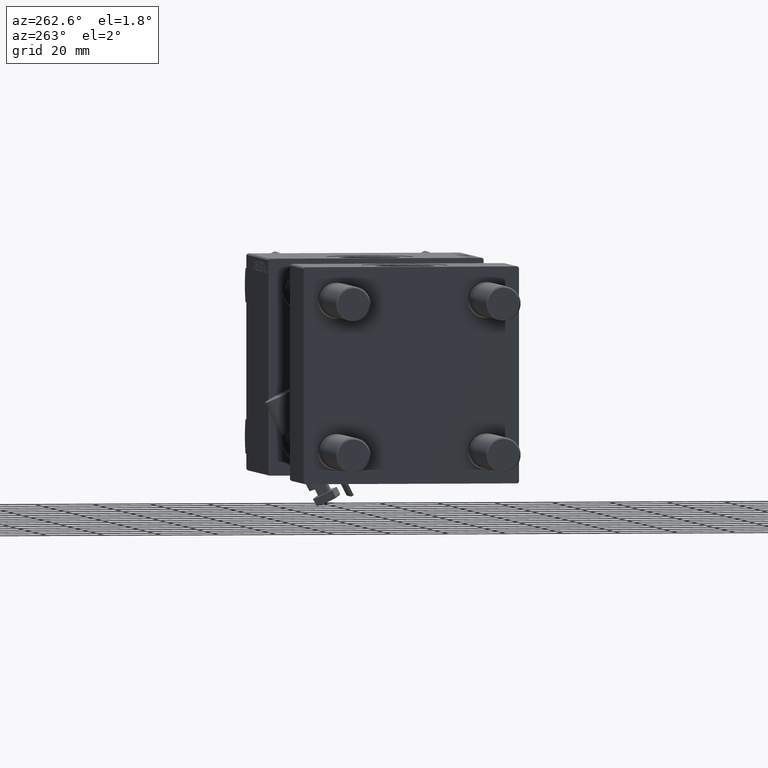
[diagram: clean part render]
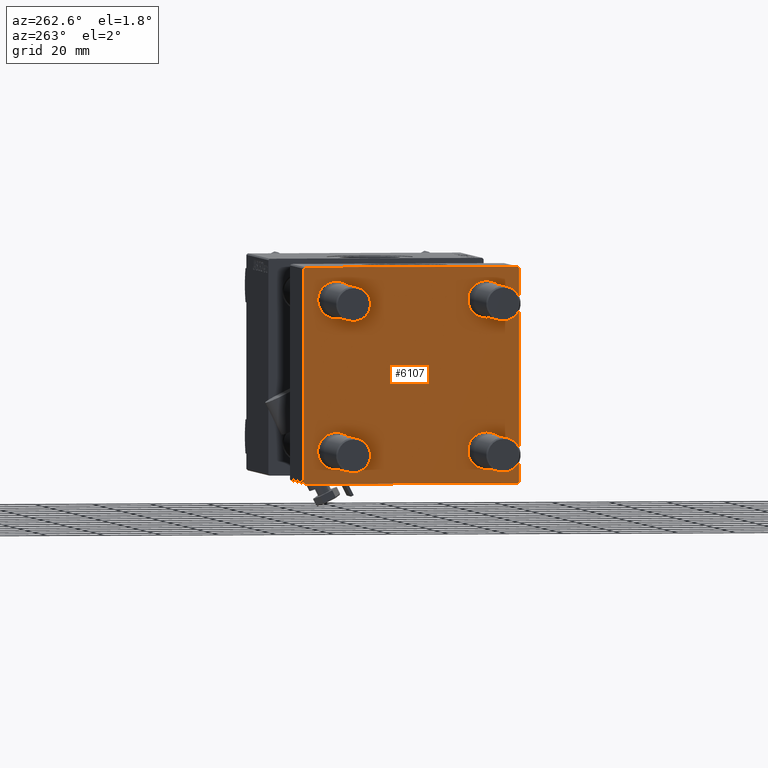
[diagram: same view with one face highlighted and labeled with its STEP entity id]
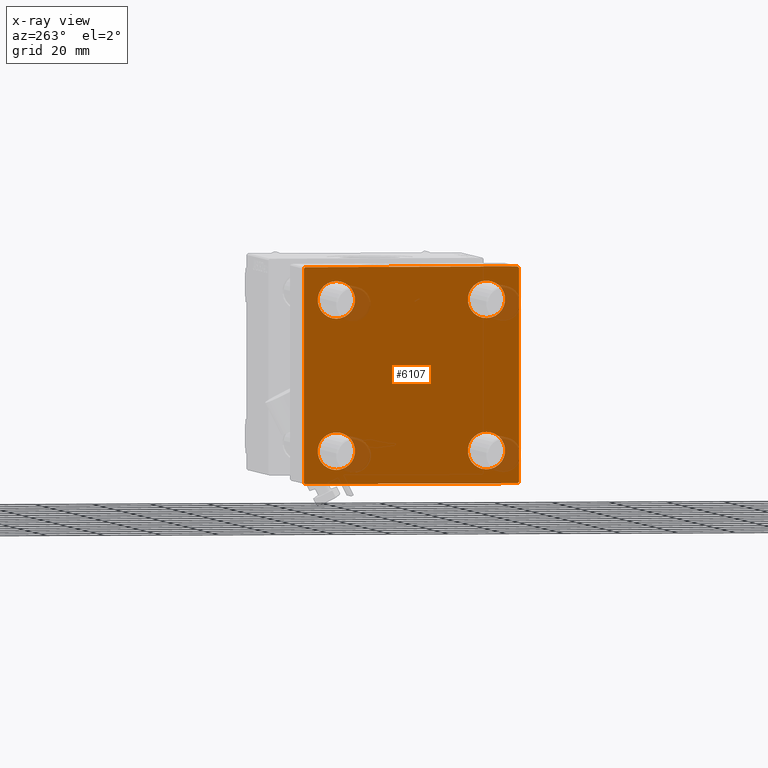
[diagram: x-ray of the same camera — body ghosted, the highlighted face saturated]
A machine part, auxiliary view. The second image highlights one B-rep face of the part: STEP entity #6107.
The next image is the same camera in x-ray: the body ghosted, the highlighted face saturated — about 5% of this face is hidden behind the body in this view.
In plain terms, the highlighted planar face has unit normal (-1, 0, 0).
Its self-contained STEP definition (entity closure, byte-faithful):
#74 = CARTESIAN_POINT ( 'NONE',  ( 0.000000000000000000, 0.000000000000000000, 0.000000000000000000 ) ) ;
#623 = DIRECTION ( 'NONE',  ( 1.000000000000000000, -0.000000000000000000, 0.000000000000000000 ) ) ;
#640 = DIRECTION ( 'NONE',  ( 1.000000000000000000, -0.000000000000000000, 0.000000000000000000 ) ) ;
#791 = LINE ( 'NONE', #35689, #18186 ) ;
#1707 = DIRECTION ( 'NONE',  ( 1.000000000000000000, -0.000000000000000000, 0.000000000000000000 ) ) ;
#2114 = VERTEX_POINT ( 'NONE', #7794 ) ;
#2826 = VECTOR ( 'NONE', #31549, 1000.000000000000000 ) ;
#3503 = VERTEX_POINT ( 'NONE', #5550 ) ;
#4164 = FACE_OUTER_BOUND ( 'NONE', #24896, .T. ) ;
#4224 = CARTESIAN_POINT ( 'NONE',  ( 0.000000000000000000, -26.14999999999999147, 26.15000000000000924 ) ) ;
#4410 = DIRECTION ( 'NONE',  ( -1.000000000000000000, 0.000000000000000000, -0.000000000000000000 ) ) ;
#4543 = CARTESIAN_POINT ( 'NONE',  ( 0.000000000000000000, -37.24999999999975842, -37.25000000000027001 ) ) ;
#4596 = LINE ( 'NONE', #40272, #50738 ) ;
#4801 = VERTEX_POINT ( 'NONE', #25053 ) ;
#4835 = CARTESIAN_POINT ( 'NONE',  ( 0.000000000000000000, -37.50000000000000711, 37.49999999999999289 ) ) ;
#5427 = CARTESIAN_POINT ( 'NONE',  ( -0.000000000000000000, -37.25000000000000000, 37.25000000000000000 ) ) ;
#5449 = VERTEX_POINT ( 'NONE', #11301 ) ;
#5550 = CARTESIAN_POINT ( 'NONE',  ( 0.000000000000000000, 26.14999999999999858, 19.64999999999998437 ) ) ;
#5792 = CARTESIAN_POINT ( 'NONE',  ( 0.000000000000000000, -26.14999999999999147, 32.65000000000003411 ) ) ;
#6107 = ADVANCED_FACE ( 'NONE', ( #47033, #43440, #38566, #46781, #4164 ), #19568, .T. ) ;
#6682 = ORIENTED_EDGE ( 'NONE', *, *, #12166, .T. ) ;
#7578 = DIRECTION ( 'NONE',  ( 0.000000000000000000, 0.000000000000000000, 1.000000000000000000 ) ) ;
#7659 = CARTESIAN_POINT ( 'NONE',  ( 0.000000000000000000, 36.99999999999997868, -37.50000000000000000 ) ) ;
#7794 = CARTESIAN_POINT ( 'NONE',  ( 0.000000000000000000, -37.50000000000000711, 36.99999999999999289 ) ) ;
#7963 = DIRECTION ( 'NONE',  ( 1.000000000000000000, -0.000000000000000000, 0.000000000000000000 ) ) ;
#8243 = DIRECTION ( 'NONE',  ( -0.000000000000000000, -0.7071067811865474617, -0.7071067811865474617 ) ) ;
#8394 = EDGE_CURVE ( 'NONE', #32486, #11329, #13655, .T. ) ;
#8607 = EDGE_LOOP ( 'NONE', ( #44364, #18329 ) ) ;
#9013 = VERTEX_POINT ( 'NONE', #47126 ) ;
#9041 = AXIS2_PLACEMENT_3D ( 'NONE', #35781, #623, #39620 ) ;
#9222 = VERTEX_POINT ( 'NONE', #5792 ) ;
#10148 = EDGE_CURVE ( 'NONE', #26869, #40585, #46472, .T. ) ;
#10262 = ORIENTED_EDGE ( 'NONE', *, *, #36067, .T. ) ;
#10547 = AXIS2_PLACEMENT_3D ( 'NONE', #4224, #640, #7578 ) ;
#11224 = DIRECTION ( 'NONE',  ( 1.000000000000000000, -0.000000000000000000, 0.000000000000000000 ) ) ;
#11301 = CARTESIAN_POINT ( 'NONE',  ( 0.000000000000000000, -26.14999999999999147, 19.64999999999999147 ) ) ;
#11329 = VERTEX_POINT ( 'NONE', #14607 ) ;
#11367 = CARTESIAN_POINT ( 'NONE',  ( 0.000000000000000000, -26.14999999999999147, -32.65000000000002700 ) ) ;
#12166 = EDGE_CURVE ( 'NONE', #40585, #26869, #42438, .T. ) ;
#12854 = AXIS2_PLACEMENT_3D ( 'NONE', #27609, #46094, #22730 ) ;
#13013 = EDGE_CURVE ( 'NONE', #5449, #9222, #40844, .T. ) ;
#13109 = ORIENTED_EDGE ( 'NONE', *, *, #17501, .T. ) ;
#13515 = LINE ( 'NONE', #4543, #36818 ) ;
#13655 = CIRCLE ( 'NONE', #12854, 6.500000000000015987 ) ;
#14540 = DIRECTION ( 'NONE',  ( 0.000000000000000000, 0.000000000000000000, -1.000000000000000000 ) ) ;
#14607 = CARTESIAN_POINT ( 'NONE',  ( 0.000000000000000000, -26.14999999999999147, -19.64999999999999503 ) ) ;
#14789 = EDGE_CURVE ( 'NONE', #20529, #46743, #41742, .T. ) ;
#15086 = EDGE_CURVE ( 'NONE', #11329, #32486, #22758, .T. ) ;
#15207 = DIRECTION ( 'NONE',  ( -0.000000000000000000, 0.000000000000000000, 1.000000000000000000 ) ) ;
#16847 = CARTESIAN_POINT ( 'NONE',  ( 0.000000000000000000, -37.50000000000000000, -37.00000000000003553 ) ) ;
#17072 = CARTESIAN_POINT ( 'NONE',  ( 0.000000000000000000, -37.00000000000002132, -37.50000000000000711 ) ) ;
#17501 = EDGE_CURVE ( 'NONE', #30731, #20776, #4596, .T. ) ;
#17718 = DIRECTION ( 'NONE',  ( -0.000000000000000000, 0.7071067811865474617, 0.7071067811865474617 ) ) ;
#17970 = AXIS2_PLACEMENT_3D ( 'NONE', #26286, #18313, #37830 ) ;
#18186 = VECTOR ( 'NONE', #8243, 1000.000000000000114 ) ;
#18313 = DIRECTION ( 'NONE',  ( 1.000000000000000000, -0.000000000000000000, 0.000000000000000000 ) ) ;
#18329 = ORIENTED_EDGE ( 'NONE', *, *, #13013, .T. ) ;
#18495 = ORIENTED_EDGE ( 'NONE', *, *, #41344, .T. ) ;
#18519 = CARTESIAN_POINT ( 'NONE',  ( 0.000000000000000000, 37.24999999999999289, 37.24999999999999289 ) ) ;
#18912 = EDGE_CURVE ( 'NONE', #20776, #31967, #13515, .T. ) ;
#19094 = VERTEX_POINT ( 'NONE', #29049 ) ;
#19219 = LINE ( 'NONE', #19741, #2826 ) ;
#19430 = CARTESIAN_POINT ( 'NONE',  ( 0.000000000000000000, -26.14999999999999147, 26.15000000000000924 ) ) ;
#19568 = PLANE ( 'NONE',  #22578 ) ;
#19741 = CARTESIAN_POINT ( 'NONE',  ( 0.000000000000000000, 37.49999999999999289, 37.50000000000000000 ) ) ;
#20489 = DIRECTION ( 'NONE',  ( 0.000000000000000000, 9.251858538542971581E-17, -1.000000000000000000 ) ) ;
#20529 = VERTEX_POINT ( 'NONE', #37707 ) ;
#20690 = CARTESIAN_POINT ( 'NONE',  ( 0.000000000000000000, 26.14999999999999858, 26.15000000000000213 ) ) ;
#20776 = VERTEX_POINT ( 'NONE', #17072 ) ;
#20993 = CARTESIAN_POINT ( 'NONE',  ( 0.000000000000000000, 37.49999999999999289, -36.99999999999998579 ) ) ;
#21204 = DIRECTION ( 'NONE',  ( 0.000000000000000000, 0.000000000000000000, 1.000000000000000000 ) ) ;
#21347 = EDGE_CURVE ( 'NONE', #46743, #30731, #791, .T. ) ;
#22027 = AXIS2_PLACEMENT_3D ( 'NONE', #19430, #11224, #35086 ) ;
#22578 = AXIS2_PLACEMENT_3D ( 'NONE', #74, #4410, #15207 ) ;
#22690 = AXIS2_PLACEMENT_3D ( 'NONE', #28815, #43688, #47808 ) ;
#22730 = DIRECTION ( 'NONE',  ( 0.000000000000000000, 0.000000000000000000, 1.000000000000000000 ) ) ;
#22758 = CIRCLE ( 'NONE', #17970, 6.500000000000015987 ) ;
#24333 = LINE ( 'NONE', #4835, #48756 ) ;
#24896 = EDGE_LOOP ( 'NONE', ( #30846, #33928, #13109, #37465, #40202, #10262, #40802, #46622 ) ) ;
#25053 = CARTESIAN_POINT ( 'NONE',  ( 0.000000000000000000, 36.99999999999999289, 37.50000000000000000 ) ) ;
#26208 = ORIENTED_EDGE ( 'NONE', *, *, #48002, .T. ) ;
#26237 = LINE ( 'NONE', #18519, #28269 ) ;
#26286 = CARTESIAN_POINT ( 'NONE',  ( 0.000000000000000000, -26.14999999999999147, -26.15000000000000924 ) ) ;
#26869 = VERTEX_POINT ( 'NONE', #32165 ) ;
#27609 = CARTESIAN_POINT ( 'NONE',  ( 0.000000000000000000, -26.14999999999999147, -26.15000000000000924 ) ) ;
#27677 = EDGE_CURVE ( 'NONE', #2114, #31967, #24333, .T. ) ;
#28028 = EDGE_CURVE ( 'NONE', #4801, #20529, #26237, .T. ) ;
#28269 = VECTOR ( 'NONE', #34187, 1000.000000000000114 ) ;
#28294 = EDGE_CURVE ( 'NONE', #4801, #9013, #19219, .T. ) ;
#28815 = CARTESIAN_POINT ( 'NONE',  ( 0.000000000000000000, 26.14999999999999858, -26.15000000000000213 ) ) ;
#29049 = CARTESIAN_POINT ( 'NONE',  ( 0.000000000000000000, 26.14999999999999858, 32.65000000000002700 ) ) ;
#29346 = VECTOR ( 'NONE', #14540, 1000.000000000000000 ) ;
#30108 = CARTESIAN_POINT ( 'NONE',  ( 0.000000000000000000, 26.14999999999999858, -32.65000000000001990 ) ) ;
#30731 = VERTEX_POINT ( 'NONE', #7659 ) ;
#30846 = ORIENTED_EDGE ( 'NONE', *, *, #14789, .T. ) ;
#31549 = DIRECTION ( 'NONE',  ( 0.000000000000000000, -1.000000000000000000, -9.251858538542971581E-17 ) ) ;
#31859 = AXIS2_PLACEMENT_3D ( 'NONE', #20690, #1707, #21204 ) ;
#31967 = VERTEX_POINT ( 'NONE', #16847 ) ;
#32165 = CARTESIAN_POINT ( 'NONE',  ( 0.000000000000000000, 26.14999999999999858, -19.64999999999998792 ) ) ;
#32486 = VERTEX_POINT ( 'NONE', #11367 ) ;
#33919 = EDGE_LOOP ( 'NONE', ( #26208, #18495 ) ) ;
#33928 = ORIENTED_EDGE ( 'NONE', *, *, #21347, .T. ) ;
#34041 = CARTESIAN_POINT ( 'NONE',  ( 0.000000000000000000, 37.49999999999999289, 37.50000000000000000 ) ) ;
#34187 = DIRECTION ( 'NONE',  ( 0.000000000000000000, 0.7071067811865474617, -0.7071067811865474617 ) ) ;
#34307 = CIRCLE ( 'NONE', #22027, 6.500000000000023093 ) ;
#35086 = DIRECTION ( 'NONE',  ( 0.000000000000000000, 0.000000000000000000, 1.000000000000000000 ) ) ;
#35213 = EDGE_LOOP ( 'NONE', ( #37027, #39429 ) ) ;
#35689 = CARTESIAN_POINT ( 'NONE',  ( 0.000000000000000000, 37.24999999999998579, -37.24999999999998579 ) ) ;
#35781 = CARTESIAN_POINT ( 'NONE',  ( 0.000000000000000000, 26.14999999999999858, 26.15000000000000213 ) ) ;
#36067 = EDGE_CURVE ( 'NONE', #2114, #9013, #44437, .T. ) ;
#36174 = DIRECTION ( 'NONE',  ( 0.000000000000000000, -1.000000000000000000, -9.251858538542972814E-17 ) ) ;
#36669 = ORIENTED_EDGE ( 'NONE', *, *, #10148, .T. ) ;
#36818 = VECTOR ( 'NONE', #40225, 1000.000000000000000 ) ;
#37027 = ORIENTED_EDGE ( 'NONE', *, *, #15086, .T. ) ;
#37465 = ORIENTED_EDGE ( 'NONE', *, *, #18912, .T. ) ;
#37707 = CARTESIAN_POINT ( 'NONE',  ( 0.000000000000000000, 37.49999999999999289, 37.00000000000000000 ) ) ;
#37830 = DIRECTION ( 'NONE',  ( 0.000000000000000000, 0.000000000000000000, 1.000000000000000000 ) ) ;
#38566 = FACE_BOUND ( 'NONE', #38909, .T. ) ;
#38909 = EDGE_LOOP ( 'NONE', ( #36669, #6682 ) ) ;
#39429 = ORIENTED_EDGE ( 'NONE', *, *, #8394, .T. ) ;
#39620 = DIRECTION ( 'NONE',  ( 0.000000000000000000, 0.000000000000000000, 1.000000000000000000 ) ) ;
#40202 = ORIENTED_EDGE ( 'NONE', *, *, #27677, .F. ) ;
#40225 = DIRECTION ( 'NONE',  ( 0.000000000000000000, -0.7071067811865524577, 0.7071067811865426878 ) ) ;
#40272 = CARTESIAN_POINT ( 'NONE',  ( 0.000000000000000000, 37.49999999999999289, -37.50000000000000000 ) ) ;
#40585 = VERTEX_POINT ( 'NONE', #30108 ) ;
#40802 = ORIENTED_EDGE ( 'NONE', *, *, #28294, .F. ) ;
#40844 = CIRCLE ( 'NONE', #10547, 6.500000000000023093 ) ;
#41215 = EDGE_CURVE ( 'NONE', #9222, #5449, #34307, .T. ) ;
#41344 = EDGE_CURVE ( 'NONE', #3503, #19094, #49877, .T. ) ;
#41742 = LINE ( 'NONE', #34041, #29346 ) ;
#42438 = CIRCLE ( 'NONE', #50667, 6.500000000000015987 ) ;
#43440 = FACE_BOUND ( 'NONE', #35213, .T. ) ;
#43688 = DIRECTION ( 'NONE',  ( 1.000000000000000000, -0.000000000000000000, 0.000000000000000000 ) ) ;
#44364 = ORIENTED_EDGE ( 'NONE', *, *, #41215, .T. ) ;
#44437 = LINE ( 'NONE', #5427, #49690 ) ;
#46094 = DIRECTION ( 'NONE',  ( 1.000000000000000000, -0.000000000000000000, 0.000000000000000000 ) ) ;
#46472 = CIRCLE ( 'NONE', #22690, 6.500000000000015987 ) ;
#46622 = ORIENTED_EDGE ( 'NONE', *, *, #28028, .T. ) ;
#46743 = VERTEX_POINT ( 'NONE', #20993 ) ;
#46781 = FACE_BOUND ( 'NONE', #33919, .T. ) ;
#46964 = DIRECTION ( 'NONE',  ( 0.000000000000000000, 0.000000000000000000, 1.000000000000000000 ) ) ;
#47033 = FACE_BOUND ( 'NONE', #8607, .T. ) ;
#47126 = CARTESIAN_POINT ( 'NONE',  ( 0.000000000000000000, -37.00000000000000711, 37.49999999999999289 ) ) ;
#47480 = CARTESIAN_POINT ( 'NONE',  ( 0.000000000000000000, 26.14999999999999858, -26.15000000000000213 ) ) ;
#47808 = DIRECTION ( 'NONE',  ( 0.000000000000000000, 0.000000000000000000, 1.000000000000000000 ) ) ;
#48002 = EDGE_CURVE ( 'NONE', #19094, #3503, #49988, .T. ) ;
#48756 = VECTOR ( 'NONE', #20489, 1000.000000000000000 ) ;
#49690 = VECTOR ( 'NONE', #17718, 1000.000000000000114 ) ;
#49877 = CIRCLE ( 'NONE', #31859, 6.500000000000023093 ) ;
#49988 = CIRCLE ( 'NONE', #9041, 6.500000000000023093 ) ;
#50667 = AXIS2_PLACEMENT_3D ( 'NONE', #47480, #7963, #46964 ) ;
#50738 = VECTOR ( 'NONE', #36174, 1000.000000000000000 ) ;